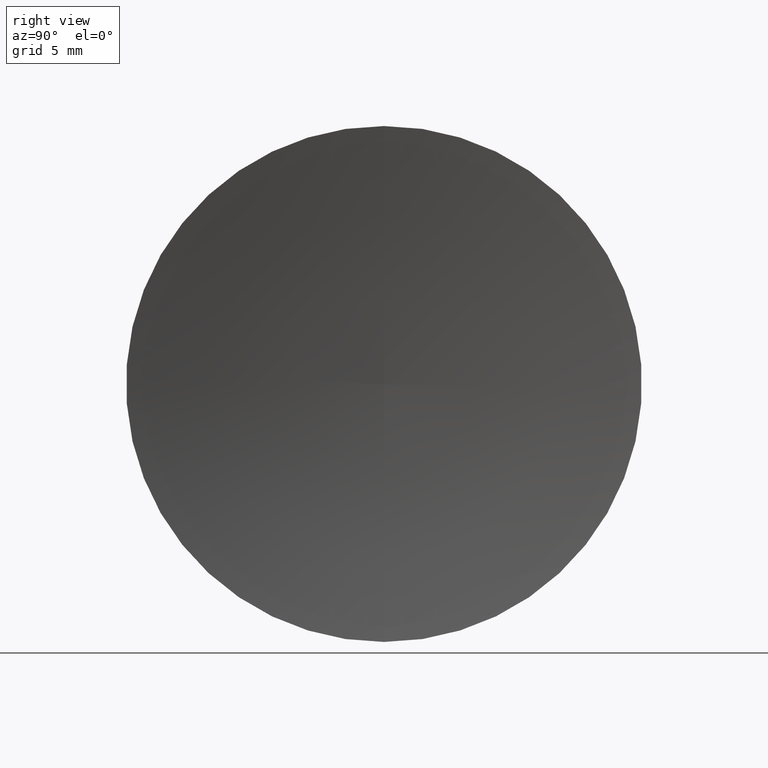
[diagram: clean part render]
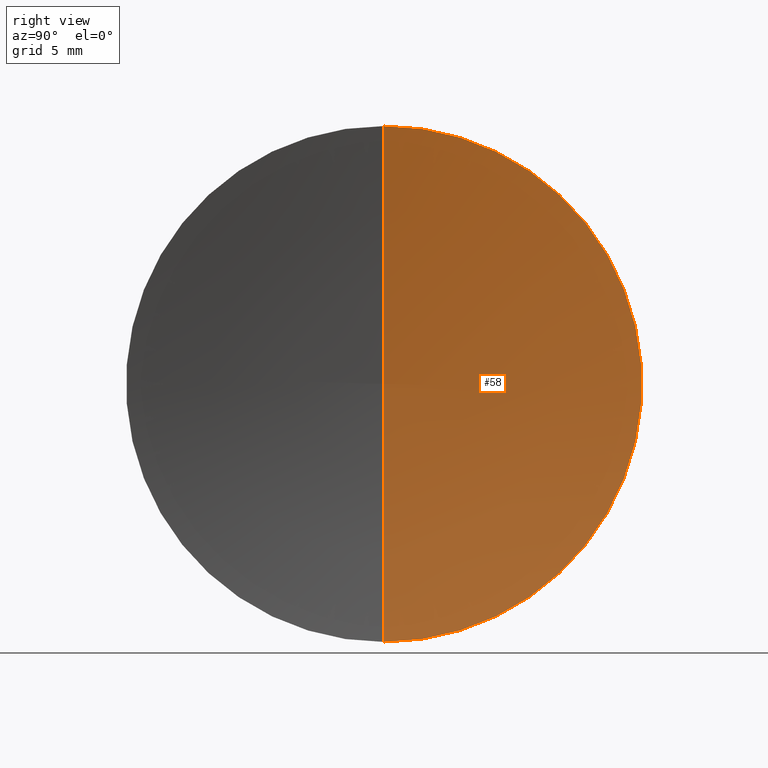
[diagram: same view with one face highlighted and labeled with its STEP entity id]
A machine part, right view. The second image highlights one B-rep face of the part: STEP entity #58.
In plain terms, the highlighted toroidal blend (fillet) surface has major radius 0.0261 mm and minor (blend) radius 70.1 mm.
Its self-contained STEP definition (entity closure, byte-faithful):
#4 = CARTESIAN_POINT ( 'NONE',  ( 122.6716689517454700, 71.19398908659370300, 0.0000000000000000000 ) ) ;
#8 = CIRCLE ( 'NONE', #137, 70.09999999999999400 ) ;
#16 = DIRECTION ( 'NONE',  ( -1.000000000000000000, -0.0000000000000000000, -0.0000000000000000000 ) ) ;
#19 = CARTESIAN_POINT ( 'NONE',  ( 122.6716689517454700, 71.19398908659370300, -12.69999999999999800 ) ) ;
#20 = ORIENTED_EDGE ( 'NONE', *, *, #59, .F. ) ;
#22 = CARTESIAN_POINT ( 'NONE',  ( 191.6068291606491400, 71.19398908659370300, -0.02610258377575003200 ) ) ;
#26 = VERTEX_POINT ( 'NONE', #92 ) ;
#40 = EDGE_CURVE ( 'NONE', #145, #135, #45, .T. ) ;
#43 = CARTESIAN_POINT ( 'NONE',  ( 191.6068291606491400, 71.19398908659370300, 0.0000000000000000000 ) ) ;
#45 = CIRCLE ( 'NONE', #76, 70.09999999999999400 ) ;
#47 = DIRECTION ( 'NONE',  ( 0.0000000000000000000, 0.0000000000000000000, -1.000000000000000000 ) ) ;
#55 = DIRECTION ( 'NONE',  ( 0.0000000000000000000, 0.0000000000000000000, 1.000000000000000000 ) ) ;
#58 = ADVANCED_FACE ( 'NONE', ( #166 ), #128, .F. ) ;
#59 = EDGE_CURVE ( 'NONE', #26, #145, #157, .T. ) ;
#76 = AXIS2_PLACEMENT_3D ( 'NONE', #81, #159, #149 ) ;
#80 = EDGE_LOOP ( 'NONE', ( #116, #20, #163 ) ) ;
#81 = CARTESIAN_POINT ( 'NONE',  ( 191.6068291606491400, 71.19398908659370300, 0.02610258377575003200 ) ) ;
#86 = DIRECTION ( 'NONE',  ( 0.0000000000000000000, -1.000000000000000000, 0.0000000000000000000 ) ) ;
#92 = CARTESIAN_POINT ( 'NONE',  ( 122.6716689517454700, 71.19398908659370300, 12.69999999999999800 ) ) ;
#95 = DIRECTION ( 'NONE',  ( 0.0000000000000000000, 0.0000000000000000000, 1.000000000000000000 ) ) ;
#112 = AXIS2_PLACEMENT_3D ( 'NONE', #4, #133, #55 ) ;
#116 = ORIENTED_EDGE ( 'NONE', *, *, #40, .F. ) ;
#121 = AXIS2_PLACEMENT_3D ( 'NONE', #43, #16, #95 ) ;
#128 = TOROIDAL_SURFACE ( 'NONE', #121, -0.02610258377575003200, 70.09999999999999400 ) ;
#133 = DIRECTION ( 'NONE',  ( -1.000000000000000000, -0.0000000000000000000, -0.0000000000000000000 ) ) ;
#135 = VERTEX_POINT ( 'NONE', #161 ) ;
#137 = AXIS2_PLACEMENT_3D ( 'NONE', #22, #86, #47 ) ;
#145 = VERTEX_POINT ( 'NONE', #19 ) ;
#149 = DIRECTION ( 'NONE',  ( 0.0000000000000000000, -1.979712954039152300E-016, 1.000000000000000000 ) ) ;
#154 = EDGE_CURVE ( 'NONE', #26, #135, #8, .T. ) ;
#157 = CIRCLE ( 'NONE', #112, 12.70000000000000300 ) ;
#159 = DIRECTION ( 'NONE',  ( -0.0000000000000000000, 1.000000000000000000, 1.224646799147353200E-016 ) ) ;
#161 = CARTESIAN_POINT ( 'NONE',  ( 121.5068340204558800, 71.19398908659370300, 0.0000000000000000000 ) ) ;
#163 = ORIENTED_EDGE ( 'NONE', *, *, #154, .T. ) ;
#166 = FACE_OUTER_BOUND ( 'NONE', #80, .T. ) ;